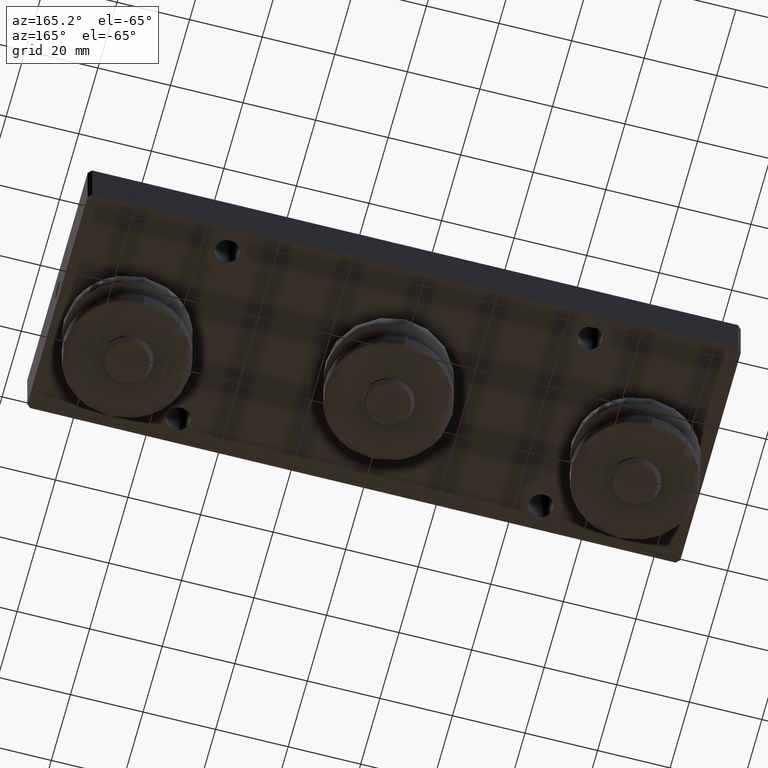
[diagram: clean part render]
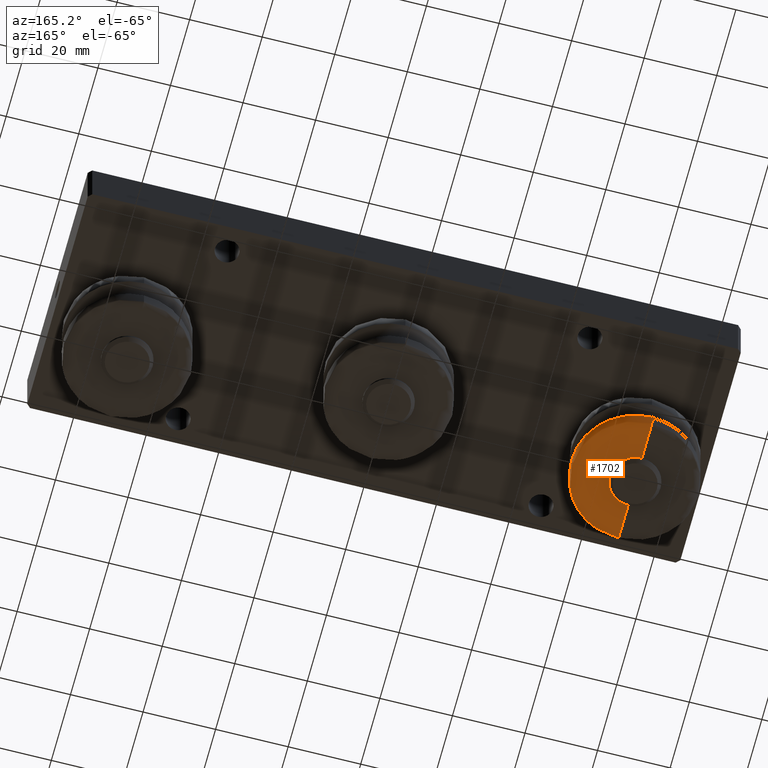
[diagram: same view with one face highlighted and labeled with its STEP entity id]
A machine part, auxiliary view. The second image highlights one B-rep face of the part: STEP entity #1702.
In plain terms, the highlighted face is a freeform B-spline surface patch.
Its self-contained STEP definition (entity closure, byte-faithful):
#45=(
BOUNDED_SURFACE()
B_SPLINE_SURFACE(2,2,((#3530,#3531,#3532,#3533,#3534,#3535,#3536,#3537,
#3538),(#3539,#3540,#3541,#3542,#3543,#3544,#3545,#3546,#3547),(#3548,#3549,
#3550,#3551,#3552,#3553,#3554,#3555,#3556),(#3557,#3558,#3559,#3560,#3561,
#3562,#3563,#3564,#3565),(#3566,#3567,#3568,#3569,#3570,#3571,#3572,#3573,
#3574),(#3575,#3576,#3577,#3578,#3579,#3580,#3581,#3582,#3583),(#3584,#3585,
#3586,#3587,#3588,#3589,#3590,#3591,#3592)),.UNSPECIFIED.,.F.,.T.,.F.)
B_SPLINE_SURFACE_WITH_KNOTS((3,2,2,3),(3,2,2,2,3),(-15.7666360627003,-12.1996117257709,
-11.4142135623734,-1.41421356237309),(4.71238898038469,6.28318530717959,
7.85398163397448,9.42477796076938,10.9955742875643),.UNSPECIFIED.)
GEOMETRIC_REPRESENTATION_ITEM()
RATIONAL_B_SPLINE_SURFACE(((1.,0.707106781186548,1.,0.707106781186548,1.,
0.707106781186548,1.,0.707106781186548,1.),(1.,0.707106781186548,1.,0.707106781186548,
1.,0.707106781186548,1.,0.707106781186548,1.),(1.,0.707106781186548,1.,
0.707106781186548,1.,0.707106781186548,1.,0.707106781186548,1.),(0.707106781186549,
0.500000000000001,0.707106781186549,0.500000000000001,0.707106781186549,
0.500000000000001,0.707106781186549,0.500000000000001,0.707106781186549),
(1.,0.707106781186548,1.,0.707106781186548,1.,0.707106781186548,1.,0.707106781186548,
1.),(1.,0.707106781186548,1.,0.707106781186548,1.,0.707106781186548,1.,
0.707106781186548,1.),(1.,0.707106781186548,1.,0.707106781186548,1.,0.707106781186548,
1.,0.707106781186548,1.)))
REPRESENTATION_ITEM('')
SURFACE()
);
#63=(
BOUNDED_CURVE()
B_SPLINE_CURVE(2,(#3593,#3594,#3595,#3596,#3597,#3598,#3599),
 .UNSPECIFIED.,.F.,.F.)
B_SPLINE_CURVE_WITH_KNOTS((3,2,2,3),(-15.7344967849095,-12.1996117257709,
-11.4142135623734,-1.41421356237309),.UNSPECIFIED.)
CURVE()
GEOMETRIC_REPRESENTATION_ITEM()
RATIONAL_B_SPLINE_CURVE((1.,1.,1.,0.707106781186548,1.,1.,1.))
REPRESENTATION_ITEM('')
);
#64=(
BOUNDED_CURVE()
B_SPLINE_CURVE(2,(#3601,#3602,#3603,#3604,#3605,#3606,#3607),
 .UNSPECIFIED.,.F.,.F.)
B_SPLINE_CURVE_WITH_KNOTS((3,2,2,3),(-15.7344967849095,-12.1996117257709,
-11.4142135623734,-1.41421356237309),.UNSPECIFIED.)
CURVE()
GEOMETRIC_REPRESENTATION_ITEM()
RATIONAL_B_SPLINE_CURVE((1.,1.,1.,0.707106781186548,1.,1.,1.))
REPRESENTATION_ITEM('')
);
#277=CIRCLE('',#2037,17.5);
#282=CIRCLE('',#2042,17.5);
#291=CIRCLE('',#2051,6.99999999999975);
#383=FACE_OUTER_BOUND('',#514,.T.);
#514=EDGE_LOOP('',(#1490,#1491,#1492,#1493,#1494));
#857=VERTEX_POINT('',#3328);
#858=VERTEX_POINT('',#3330);
#869=VERTEX_POINT('',#3361);
#870=VERTEX_POINT('',#3362);
#871=VERTEX_POINT('',#3364);
#1071=EDGE_CURVE('',#870,#871,#277,.F.);
#1076=EDGE_CURVE('',#871,#869,#282,.F.);
#1087=EDGE_CURVE('',#870,#858,#63,.T.);
#1088=EDGE_CURVE('',#857,#858,#291,.T.);
#1089=EDGE_CURVE('',#869,#857,#64,.T.);
#1490=ORIENTED_EDGE('',*,*,#1071,.F.);
#1491=ORIENTED_EDGE('',*,*,#1087,.T.);
#1492=ORIENTED_EDGE('',*,*,#1088,.F.);
#1493=ORIENTED_EDGE('',*,*,#1089,.F.);
#1494=ORIENTED_EDGE('',*,*,#1076,.F.);
#1702=ADVANCED_FACE('',(#383),#45,.T.);
#2037=AXIS2_PLACEMENT_3D('',#3365,#2497,#2498);
#2042=AXIS2_PLACEMENT_3D('',#3373,#2507,#2508);
#2051=AXIS2_PLACEMENT_3D('',#3600,#2525,#2526);
#2497=DIRECTION('center_axis',(-1.98389456597707E-15,0.,-1.));
#2498=DIRECTION('ref_axis',(-1.,0.,1.98389456597707E-15));
#2507=DIRECTION('center_axis',(-1.98389456597707E-15,0.,-1.));
#2508=DIRECTION('ref_axis',(-1.,0.,1.98389456597707E-15));
#2525=DIRECTION('center_axis',(-5.15460690004499E-14,-5.154606900045E-14,
-1.));
#2526=DIRECTION('ref_axis',(0.,1.,-5.154606900045E-14));
#3328=CARTESIAN_POINT('',(1.14352971536391E-11,7.00000000001182,-30.3000000001203));
#3330=CARTESIAN_POINT('',(1.14352971536391E-11,-6.99999999998718,-30.3000000001203));
#3361=CARTESIAN_POINT('',(1.03181352351101E-11,17.500000000012,-26.2651149409818));
#3362=CARTESIAN_POINT('',(1.14352971536391E-11,-17.4999999999877,-26.2651149409818));
#3364=CARTESIAN_POINT('',(17.5000000000119,-2.14313189850989E-15,-26.2651149409818));
#3365=CARTESIAN_POINT('Origin',(1.18873911500323E-11,1.2115308756222E-11,
-26.2651149409818));
#3373=CARTESIAN_POINT('Origin',(1.18873911500323E-11,1.2115308756222E-11,
-26.2651149409818));
#3530=CARTESIAN_POINT('Ctrl Pts',(1.16792880938537E-11,-17.4999999999878,
-26.232975663191));
#3531=CARTESIAN_POINT('Ctrl Pts',(17.5000000000116,-17.499999999988,-26.232975663191));
#3532=CARTESIAN_POINT('Ctrl Pts',(17.5000000000118,1.19071419391048E-11,
-26.232975663191));
#3533=CARTESIAN_POINT('Ctrl Pts',(17.500000000012,17.5000000000118,-26.232975663191));
#3534=CARTESIAN_POINT('Ctrl Pts',(1.20956217280881E-11,17.500000000012,
-26.232975663191));
#3535=CARTESIAN_POINT('Ctrl Pts',(-17.4999999999878,17.5000000000122,-26.2329756631909));
#3536=CARTESIAN_POINT('Ctrl Pts',(-17.499999999988,1.23234755733392E-11,
-26.2329756631909));
#3537=CARTESIAN_POINT('Ctrl Pts',(-17.4999999999882,-17.4999999999876,-26.2329756631909));
#3538=CARTESIAN_POINT('Ctrl Pts',(1.16792880938537E-11,-17.4999999999878,
-26.232975663191));
#3539=CARTESIAN_POINT('Ctrl Pts',(1.16757497937544E-11,-17.4999999999878,
-28.0164878316558));
#3540=CARTESIAN_POINT('Ctrl Pts',(17.5000000000116,-17.499999999988,-28.0164878316558));
#3541=CARTESIAN_POINT('Ctrl Pts',(17.5000000000118,1.19071419391048E-11,
-28.0164878316558));
#3542=CARTESIAN_POINT('Ctrl Pts',(17.500000000012,17.5000000000118,-28.0164878316558));
#3543=CARTESIAN_POINT('Ctrl Pts',(1.20920834279888E-11,17.500000000012,
-28.0164878316558));
#3544=CARTESIAN_POINT('Ctrl Pts',(-17.4999999999878,17.5000000000122,-28.0164878316557));
#3545=CARTESIAN_POINT('Ctrl Pts',(-17.499999999988,1.23234755733392E-11,
-28.0164878316557));
#3546=CARTESIAN_POINT('Ctrl Pts',(-17.4999999999882,-17.4999999999876,-28.0164878316557));
#3547=CARTESIAN_POINT('Ctrl Pts',(1.16757497937544E-11,-17.4999999999878,
-28.0164878316558));
#3548=CARTESIAN_POINT('Ctrl Pts',(1.1672211493655E-11,-17.4999999999878,
-29.8000000001204));
#3549=CARTESIAN_POINT('Ctrl Pts',(17.5000000000116,-17.499999999988,-29.8000000001204));
#3550=CARTESIAN_POINT('Ctrl Pts',(17.5000000000118,1.19071419391048E-11,
-29.8000000001204));
#3551=CARTESIAN_POINT('Ctrl Pts',(17.500000000012,17.5000000000118,-29.8000000001204));
#3552=CARTESIAN_POINT('Ctrl Pts',(1.20885451278894E-11,17.500000000012,
-29.8000000001204));
#3553=CARTESIAN_POINT('Ctrl Pts',(-17.4999999999878,17.5000000000122,-29.8000000001203));
#3554=CARTESIAN_POINT('Ctrl Pts',(-17.499999999988,1.23234755733392E-11,
-29.8000000001203));
#3555=CARTESIAN_POINT('Ctrl Pts',(-17.4999999999882,-17.4999999999876,-29.8000000001203));
#3556=CARTESIAN_POINT('Ctrl Pts',(1.1672211493655E-11,-17.4999999999878,
-29.8000000001204));
#3557=CARTESIAN_POINT('Ctrl Pts',(1.16771541375303E-11,-17.499999999988,
-30.3000000001205));
#3558=CARTESIAN_POINT('Ctrl Pts',(17.5000000000118,-17.4999999999882,-30.3000000001205));
#3559=CARTESIAN_POINT('Ctrl Pts',(17.500000000012,1.19130765302631E-11,
-30.3000000001205));
#3560=CARTESIAN_POINT('Ctrl Pts',(17.5000000000122,17.500000000012,-30.3000000001205));
#3561=CARTESIAN_POINT('Ctrl Pts',(1.20816185894481E-11,17.5000000000122,
-30.3000000001205));
#3562=CARTESIAN_POINT('Ctrl Pts',(-17.499999999988,17.5000000000124,-30.3000000001204));
#3563=CARTESIAN_POINT('Ctrl Pts',(-17.4999999999882,1.23175409821809E-11,
-30.3000000001204));
#3564=CARTESIAN_POINT('Ctrl Pts',(-17.4999999999884,-17.4999999999878,-30.3000000001204));
#3565=CARTESIAN_POINT('Ctrl Pts',(1.16771541375303E-11,-17.499999999988,
-30.3000000001205));
#3566=CARTESIAN_POINT('Ctrl Pts',(1.1671219546372E-11,-16.9999999999877,
-30.3000000001204));
#3567=CARTESIAN_POINT('Ctrl Pts',(17.0000000000115,-16.9999999999879,-30.3000000001204));
#3568=CARTESIAN_POINT('Ctrl Pts',(17.0000000000117,1.19071419391048E-11,
-30.3000000001204));
#3569=CARTESIAN_POINT('Ctrl Pts',(17.0000000000119,17.0000000000117,-30.3000000001204));
#3570=CARTESIAN_POINT('Ctrl Pts',(1.20875531806064E-11,17.0000000000119,
-30.3000000001204));
#3571=CARTESIAN_POINT('Ctrl Pts',(-16.9999999999877,17.0000000000121,-30.3000000001203));
#3572=CARTESIAN_POINT('Ctrl Pts',(-16.9999999999879,1.23234755733392E-11,
-30.3000000001203));
#3573=CARTESIAN_POINT('Ctrl Pts',(-16.9999999999881,-16.9999999999875,-30.3000000001203));
#3574=CARTESIAN_POINT('Ctrl Pts',(1.1671219546372E-11,-16.9999999999877,
-30.3000000001204));
#3575=CARTESIAN_POINT('Ctrl Pts',(1.16434639707564E-11,-11.9999999999877,
-30.3000000001204));
#3576=CARTESIAN_POINT('Ctrl Pts',(12.0000000000115,-11.9999999999879,-30.3000000001204));
#3577=CARTESIAN_POINT('Ctrl Pts',(12.0000000000117,1.18793863634892E-11,
-30.3000000001204));
#3578=CARTESIAN_POINT('Ctrl Pts',(12.0000000000119,12.0000000000117,-30.3000000001204));
#3579=CARTESIAN_POINT('Ctrl Pts',(1.2115308756222E-11,12.0000000000119,
-30.3000000001204));
#3580=CARTESIAN_POINT('Ctrl Pts',(-11.9999999999877,12.0000000000122,-30.3000000001204));
#3581=CARTESIAN_POINT('Ctrl Pts',(-11.9999999999879,1.23512311489548E-11,
-30.3000000001204));
#3582=CARTESIAN_POINT('Ctrl Pts',(-11.9999999999882,-11.9999999999875,-30.3000000001204));
#3583=CARTESIAN_POINT('Ctrl Pts',(1.16434639707564E-11,-11.9999999999877,
-30.3000000001204));
#3584=CARTESIAN_POINT('Ctrl Pts',(1.16157083951407E-11,-6.99999999998767,
-30.3000000001204));
#3585=CARTESIAN_POINT('Ctrl Pts',(7.0000000000114,-6.99999999998793,-30.3000000001204));
#3586=CARTESIAN_POINT('Ctrl Pts',(7.00000000001166,1.18516307878735E-11,
-30.3000000001204));
#3587=CARTESIAN_POINT('Ctrl Pts',(7.00000000001192,7.00000000001163,-30.3000000001204));
#3588=CARTESIAN_POINT('Ctrl Pts',(1.21430643318377E-11,7.0000000000119,
-30.3000000001204));
#3589=CARTESIAN_POINT('Ctrl Pts',(-6.99999999998764,7.00000000001216,-30.3000000001204));
#3590=CARTESIAN_POINT('Ctrl Pts',(-6.9999999999879,1.23789867245705E-11,
-30.3000000001204));
#3591=CARTESIAN_POINT('Ctrl Pts',(-6.99999999998816,-6.9999999999874,-30.3000000001204));
#3592=CARTESIAN_POINT('Ctrl Pts',(1.16157083951407E-11,-6.99999999998767,
-30.3000000001204));
#3593=CARTESIAN_POINT('Ctrl Pts',(1.14352971536391E-11,-17.4999999999877,
-26.2651149409818));
#3594=CARTESIAN_POINT('Ctrl Pts',(1.14352971536391E-11,-17.4999999999877,
-28.0325574705511));
#3595=CARTESIAN_POINT('Ctrl Pts',(1.14352971536391E-11,-17.4999999999877,
-29.8000000001203));
#3596=CARTESIAN_POINT('Ctrl Pts',(1.16186841942599E-11,-17.4999999999876,
-30.3000000001205));
#3597=CARTESIAN_POINT('Ctrl Pts',(1.14352971536391E-11,-16.9999999999877,
-30.3000000001203));
#3598=CARTESIAN_POINT('Ctrl Pts',(1.14352971536391E-11,-11.9999999999876,
-30.3000000001203));
#3599=CARTESIAN_POINT('Ctrl Pts',(1.14352971536391E-11,-6.99999999998718,
-30.3000000001203));
#3600=CARTESIAN_POINT('Origin',(1.14352971536391E-11,1.23789867245705E-11,
-30.30000000012));
#3601=CARTESIAN_POINT('Ctrl Pts',(1.14352971536391E-11,17.5000000000119,
-26.2651149409818));
#3602=CARTESIAN_POINT('Ctrl Pts',(1.14352971536391E-11,17.5000000000119,
-28.0325574705511));
#3603=CARTESIAN_POINT('Ctrl Pts',(1.14352971536391E-11,17.5000000000119,
-29.8000000001203));
#3604=CARTESIAN_POINT('Ctrl Pts',(1.16186841942599E-11,17.5000000000119,
-30.3000000001205));
#3605=CARTESIAN_POINT('Ctrl Pts',(1.14352971536391E-11,17.0000000000118,
-30.3000000001203));
#3606=CARTESIAN_POINT('Ctrl Pts',(1.14352971536391E-11,12.0000000000118,
-30.3000000001203));
#3607=CARTESIAN_POINT('Ctrl Pts',(1.14352971536391E-11,7.00000000001182,
-30.3000000001203));